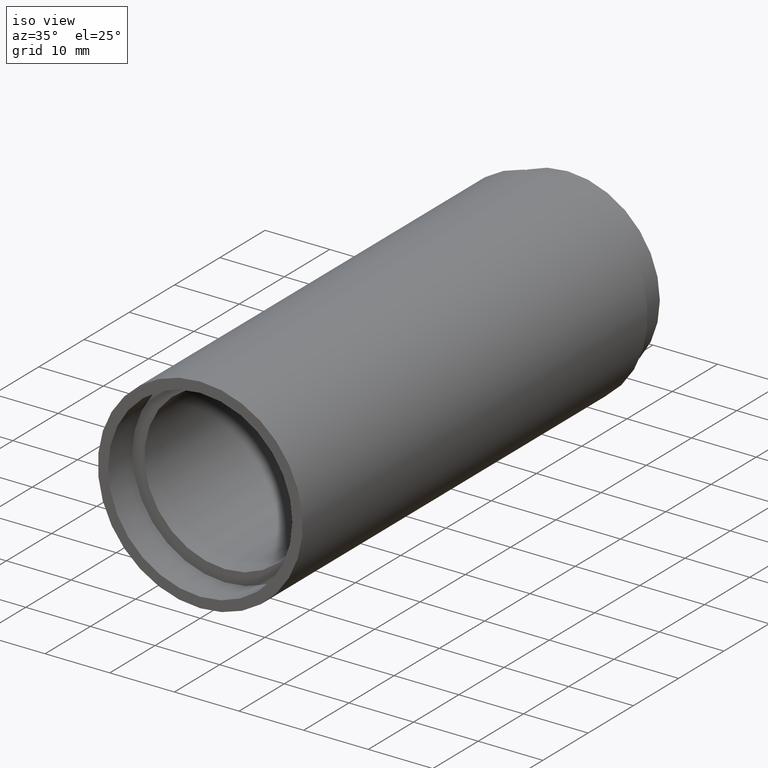
[diagram: clean part render]
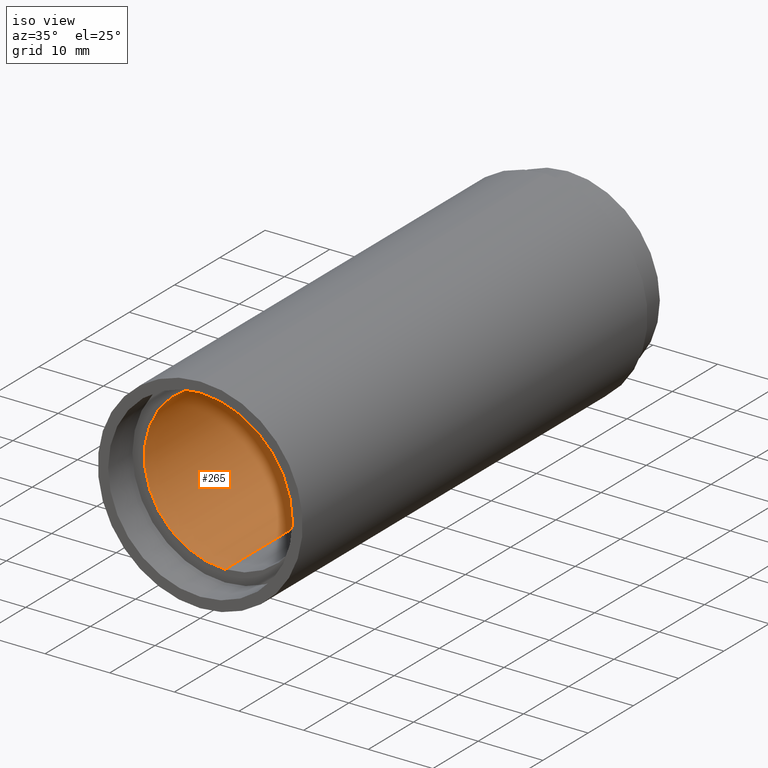
[diagram: same view with one face highlighted and labeled with its STEP entity id]
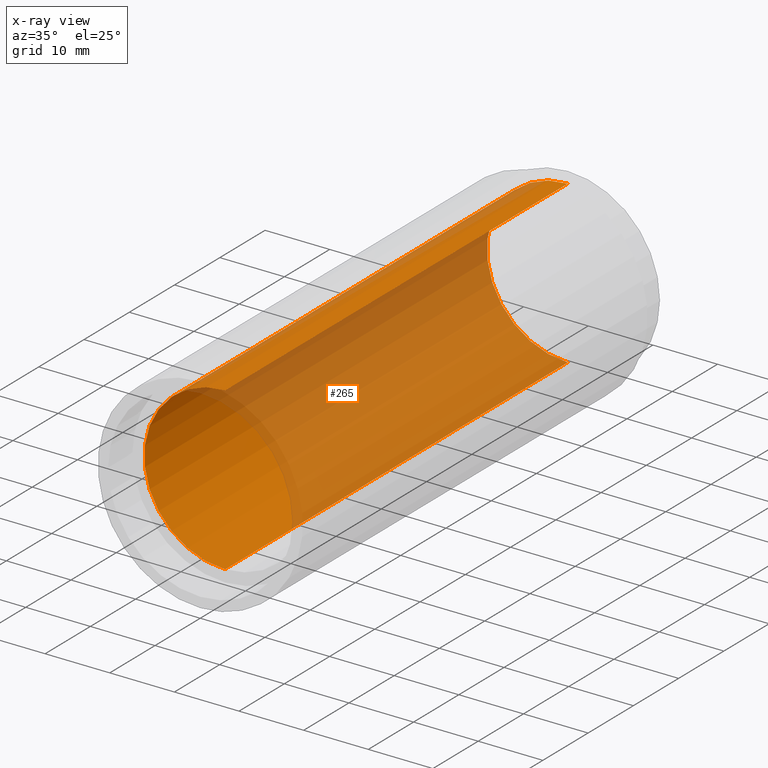
[diagram: x-ray of the same camera — body ghosted, the highlighted face saturated]
A machine part, iso view. The second image highlights one B-rep face of the part: STEP entity #265.
The next image is the same camera in x-ray: the body ghosted, the highlighted face saturated — about 65% of this face is hidden behind the body in this view.
In plain terms, the highlighted cylindrical surface (partial cylindrical patch) has radius 12.5 mm, axis along (-0, 1, -0).
Its self-contained STEP definition (entity closure, byte-faithful):
#2 = EDGE_CURVE ( 'NONE', #212, #215, #15, .T. ) ;
#15 = CIRCLE ( 'NONE', #475, 12.50000000000002000 ) ;
#38 = CARTESIAN_POINT ( 'NONE',  ( 0.0000000000000000000, 81.19999999999998900, 12.50000000000002000 ) ) ;
#82 = DIRECTION ( 'NONE',  ( -0.0000000000000000000, 1.000000000000000000, -0.0000000000000000000 ) ) ;
#95 = DIRECTION ( 'NONE',  ( -0.0000000000000000000, 1.000000000000000000, -0.0000000000000000000 ) ) ;
#111 = FACE_OUTER_BOUND ( 'NONE', #119, .T. ) ;
#118 = CARTESIAN_POINT ( 'NONE',  ( 1.530808498934193900E-015, 81.19999999999998900, -12.50000000000002000 ) ) ;
#119 = EDGE_LOOP ( 'NONE', ( #613, #615, #187, #411 ) ) ;
#124 = VERTEX_POINT ( 'NONE', #38 ) ;
#127 = AXIS2_PLACEMENT_3D ( 'NONE', #269, #421, #373 ) ;
#150 = LINE ( 'NONE', #309, #591 ) ;
#165 = CARTESIAN_POINT ( 'NONE',  ( 1.530808498934193900E-015, 5.499999999999976900, -12.50000000000002000 ) ) ;
#168 = LINE ( 'NONE', #304, #600 ) ;
#187 = ORIENTED_EDGE ( 'NONE', *, *, #524, .T. ) ;
#205 = CARTESIAN_POINT ( 'NONE',  ( 0.0000000000000000000, 5.499999999999976900, 12.50000000000002000 ) ) ;
#212 = VERTEX_POINT ( 'NONE', #165 ) ;
#215 = VERTEX_POINT ( 'NONE', #205 ) ;
#220 = DIRECTION ( 'NONE',  ( 0.0000000000000000000, 0.0000000000000000000, 1.000000000000000000 ) ) ;
#265 = ADVANCED_FACE ( 'NONE', ( #111 ), #338, .F. ) ;
#269 = CARTESIAN_POINT ( 'NONE',  ( 0.0000000000000000000, 81.19999999999998900, 0.0000000000000000000 ) ) ;
#304 = CARTESIAN_POINT ( 'NONE',  ( 0.0000000000000000000, 161.3761669434274500, 12.50000000000002000 ) ) ;
#309 = CARTESIAN_POINT ( 'NONE',  ( 1.530808498934193900E-015, 161.3761669434274500, -12.50000000000002000 ) ) ;
#338 = CYLINDRICAL_SURFACE ( 'NONE', #577, 12.50000000000002000 ) ;
#373 = DIRECTION ( 'NONE',  ( 0.0000000000000000000, 0.0000000000000000000, 1.000000000000000000 ) ) ;
#392 = VERTEX_POINT ( 'NONE', #118 ) ;
#398 = EDGE_CURVE ( 'NONE', #215, #124, #168, .T. ) ;
#403 = CIRCLE ( 'NONE', #127, 12.50000000000002000 ) ;
#411 = ORIENTED_EDGE ( 'NONE', *, *, #398, .F. ) ;
#421 = DIRECTION ( 'NONE',  ( -0.0000000000000000000, 1.000000000000000000, -0.0000000000000000000 ) ) ;
#427 = EDGE_CURVE ( 'NONE', #212, #392, #150, .T. ) ;
#462 = CARTESIAN_POINT ( 'NONE',  ( 0.0000000000000000000, 5.499999999999976900, 0.0000000000000000000 ) ) ;
#475 = AXIS2_PLACEMENT_3D ( 'NONE', #462, #82, #220 ) ;
#500 = DIRECTION ( 'NONE',  ( -0.0000000000000000000, 1.000000000000000000, -0.0000000000000000000 ) ) ;
#503 = DIRECTION ( 'NONE',  ( -0.0000000000000000000, 1.000000000000000000, -0.0000000000000000000 ) ) ;
#520 = DIRECTION ( 'NONE',  ( 0.0000000000000000000, 0.0000000000000000000, 1.000000000000000000 ) ) ;
#524 = EDGE_CURVE ( 'NONE', #392, #124, #403, .T. ) ;
#527 = CARTESIAN_POINT ( 'NONE',  ( 0.0000000000000000000, 161.3761669434274500, 0.0000000000000000000 ) ) ;
#577 = AXIS2_PLACEMENT_3D ( 'NONE', #527, #95, #520 ) ;
#591 = VECTOR ( 'NONE', #503, 1000.000000000000000 ) ;
#600 = VECTOR ( 'NONE', #500, 1000.000000000000000 ) ;
#613 = ORIENTED_EDGE ( 'NONE', *, *, #2, .F. ) ;
#615 = ORIENTED_EDGE ( 'NONE', *, *, #427, .T. ) ;